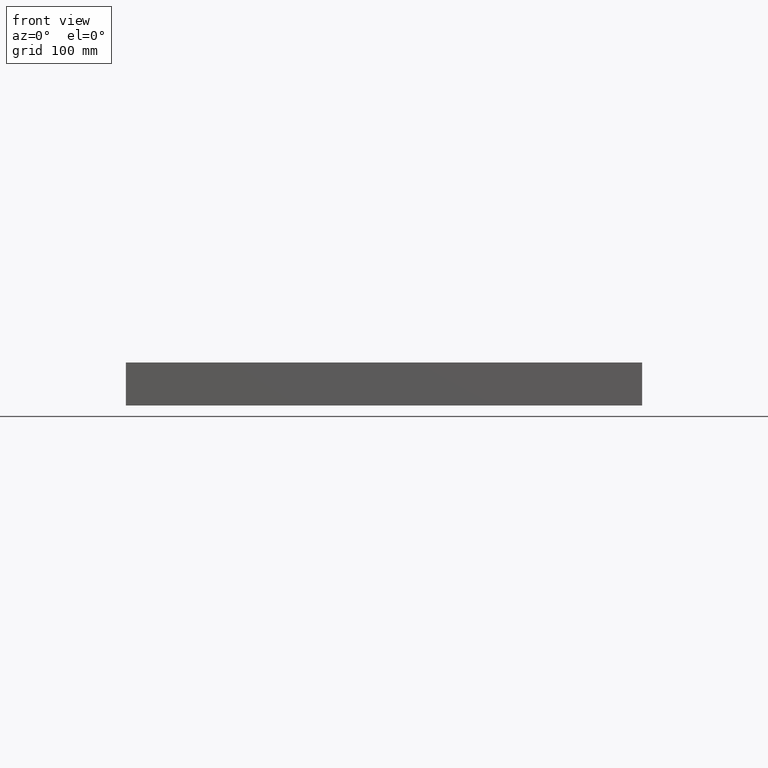
[diagram: clean part render]
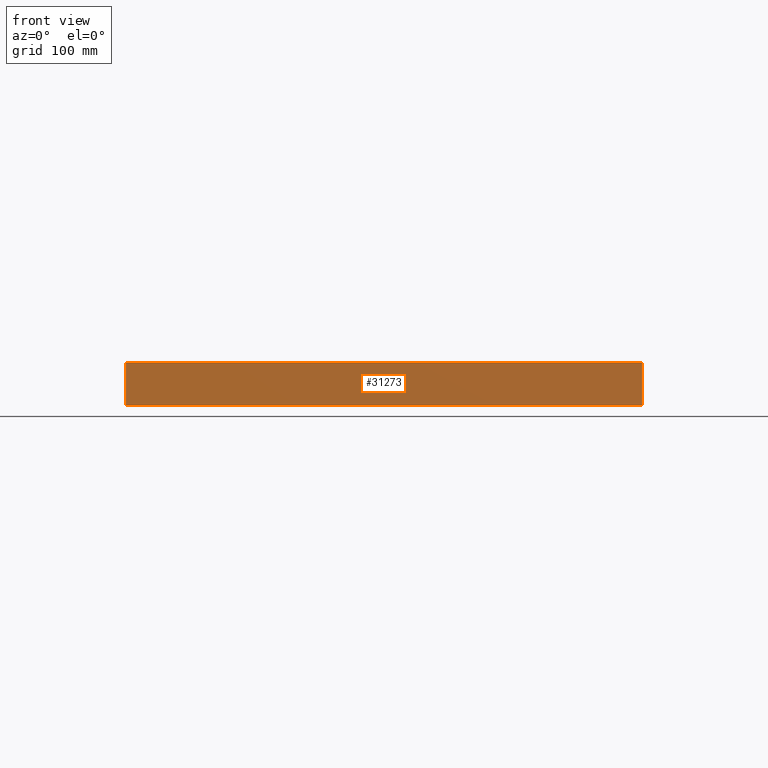
[diagram: same view with one face highlighted and labeled with its STEP entity id]
A machine part, front view. The second image highlights one B-rep face of the part: STEP entity #31273.
In plain terms, the highlighted planar face has unit normal (0, 1, 0).
Its self-contained STEP definition (entity closure, byte-faithful):
#807 = CARTESIAN_POINT ( 'NONE',  ( -299.9999999999998300, -300.0000000000000600, 50.00000000000000000 ) ) ;
#1201 = VECTOR ( 'NONE', #1427, 1000.000000000000000 ) ;
#1280 = DIRECTION ( 'NONE',  ( -0.0000000000000000000, -0.0000000000000000000, -1.000000000000000000 ) ) ;
#1427 = DIRECTION ( 'NONE',  ( 1.000000000000000000, 0.0000000000000000000, 0.0000000000000000000 ) ) ;
#2100 = VERTEX_POINT ( 'NONE', #28757 ) ;
#2877 = ORIENTED_EDGE ( 'NONE', *, *, #17262, .F. ) ;
#2988 = ORIENTED_EDGE ( 'NONE', *, *, #20498, .T. ) ;
#3967 = CARTESIAN_POINT ( 'NONE',  ( -299.9999999999998300, -300.0000000000000600, 50.00000000000000000 ) ) ;
#4421 = ORIENTED_EDGE ( 'NONE', *, *, #16804, .F. ) ;
#4828 = DIRECTION ( 'NONE',  ( 1.000000000000000000, 0.0000000000000000000, 0.0000000000000000000 ) ) ;
#6130 = LINE ( 'NONE', #3967, #33010 ) ;
#6519 = PLANE ( 'NONE',  #24556 ) ;
#10276 = CARTESIAN_POINT ( 'NONE',  ( -299.9999999999998300, -300.0000000000000600, 0.0000000000000000000 ) ) ;
#10940 = CARTESIAN_POINT ( 'NONE',  ( 300.0000000000000600, -300.0000000000000600, 0.0000000000000000000 ) ) ;
#11165 = LINE ( 'NONE', #31821, #32423 ) ;
#11171 = VERTEX_POINT ( 'NONE', #10940 ) ;
#12083 = EDGE_LOOP ( 'NONE', ( #2988, #2877, #4421, #31961 ) ) ;
#14094 = EDGE_CURVE ( 'NONE', #27321, #31115, #6130, .T. ) ;
#14857 = DIRECTION ( 'NONE',  ( 0.0000000000000000000, -0.0000000000000000000, 1.000000000000000000 ) ) ;
#15232 = DIRECTION ( 'NONE',  ( -0.0000000000000000000, -0.0000000000000000000, -1.000000000000000000 ) ) ;
#16800 = CARTESIAN_POINT ( 'NONE',  ( -299.9999999999998300, -300.0000000000000600, 0.0000000000000000000 ) ) ;
#16804 = EDGE_CURVE ( 'NONE', #27321, #2100, #22475, .T. ) ;
#17262 = EDGE_CURVE ( 'NONE', #2100, #11171, #11165, .T. ) ;
#20497 = VECTOR ( 'NONE', #4828, 1000.000000000000000 ) ;
#20498 = EDGE_CURVE ( 'NONE', #31115, #11171, #35284, .T. ) ;
#22475 = LINE ( 'NONE', #31980, #1201 ) ;
#22572 = CARTESIAN_POINT ( 'NONE',  ( -299.9999999999998300, -300.0000000000000600, 50.00000000000000000 ) ) ;
#24556 = AXIS2_PLACEMENT_3D ( 'NONE', #807, #31453, #14857 ) ;
#27321 = VERTEX_POINT ( 'NONE', #22572 ) ;
#28757 = CARTESIAN_POINT ( 'NONE',  ( 300.0000000000000600, -300.0000000000000600, 50.00000000000000000 ) ) ;
#31115 = VERTEX_POINT ( 'NONE', #16800 ) ;
#31273 = ADVANCED_FACE ( 'NONE', ( #34974 ), #6519, .F. ) ;
#31453 = DIRECTION ( 'NONE',  ( 0.0000000000000000000, 1.000000000000000000, 0.0000000000000000000 ) ) ;
#31821 = CARTESIAN_POINT ( 'NONE',  ( 300.0000000000000600, -300.0000000000000600, 50.00000000000000000 ) ) ;
#31961 = ORIENTED_EDGE ( 'NONE', *, *, #14094, .T. ) ;
#31980 = CARTESIAN_POINT ( 'NONE',  ( -299.9999999999998300, -300.0000000000000600, 50.00000000000000000 ) ) ;
#32423 = VECTOR ( 'NONE', #15232, 1000.000000000000000 ) ;
#33010 = VECTOR ( 'NONE', #1280, 1000.000000000000000 ) ;
#34974 = FACE_OUTER_BOUND ( 'NONE', #12083, .T. ) ;
#35284 = LINE ( 'NONE', #10276, #20497 ) ;